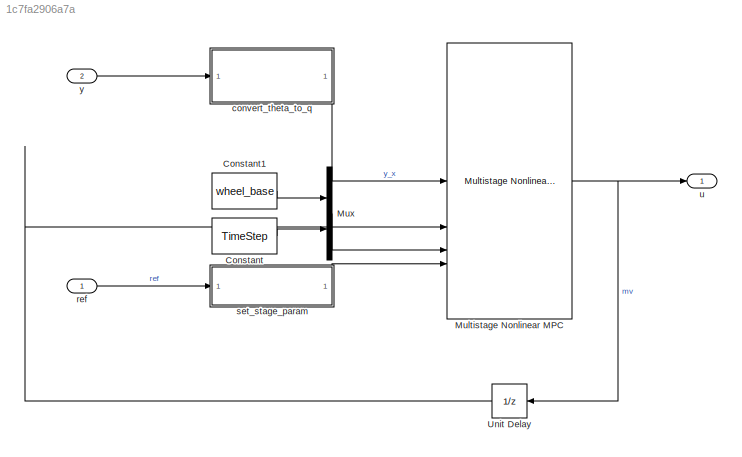
MODEL slx_1c7fa2906a7a
KIND model
BLOCK [Constant] Constant
  Value = TimeStep
BLOCK [Constant] Constant1
  Value = wheel_base
BLOCK [Reference] Multistage Nonlinear MPC  REF=mpclib/Multistage Nonlinear MPC  (lib defined in mdl_ae329e0e0455)
  SCDEnableBlockLinearizationSpecification = on
  SourceBlock = mpclib/Multistage Nonlinear MPC
  SourceType = NonlinearMPCMultistage
BLOCK [Mux] Mux
  DisplayOption = bar
  Inputs = 2
BLOCK [UnitDelay] Unit Delay
  HasFrameUpgradeWarning = on
  InitialCondition = u0
  SampleTime = -1
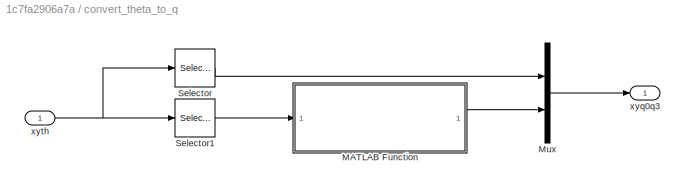
BLOCK [SubSystem] convert_theta_to_q
  AncestorBlock = nl_vehicle_MPC_lib/convert_theta_to_q
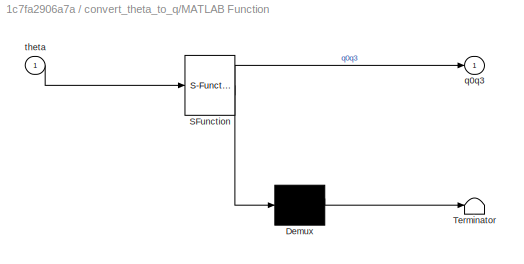
BLOCK [SubSystem] convert_theta_to_q/MATLAB Function
  ErrorFcn = Stateflow.Translate.translate
  PermitHierarchicalResolution = ExplicitOnly
  SFBlockType = MATLAB Function
  TreatAsAtomicUnit = on
BLOCK [Demux] convert_theta_to_q/MATLAB Function/ Demux 
  Outputs = 1
BLOCK [S-Function] convert_theta_to_q/MATLAB Function/ SFunction 
  EnableBusSupport = off
  FunctionName = sf_sfun
  PortCounts = [1 2]
  SFcnIsStateOwnerBlock = off
  SFunctionDeploymentMode = off
  Tag = Stateflow S-Function 1
BLOCK [Terminator] convert_theta_to_q/MATLAB Function/ Terminator 
BLOCK [Outport] convert_theta_to_q/MATLAB Function/q0q3
BLOCK [Inport] convert_theta_to_q/MATLAB Function/theta
BLOCK [Mux] convert_theta_to_q/Mux
  DisplayOption = bar
  Inputs = 2
BLOCK [Selector] convert_theta_to_q/Selector
  IndexOptions = Index vector (dialog)
  Indices = [1 2]
  InputPortWidth = 3
  OutputSizes = 1
BLOCK [Selector] convert_theta_to_q/Selector1
  IndexOptions = Index vector (dialog)
  Indices = [3]
  InputPortWidth = 3
  OutputSizes = 1
BLOCK [Outport] convert_theta_to_q/xyq0q3
BLOCK [Inport] convert_theta_to_q/xyth
BLOCK [Inport] ref
  OutDataTypeStr = double
  PortDimensions = [refNum, 4]
  SamplingMode = Sample based
  SignalType = real
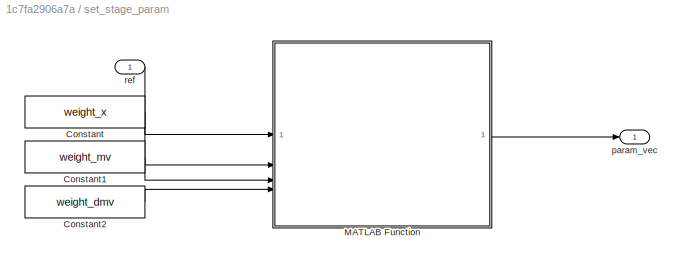
BLOCK [SubSystem] set_stage_param
BLOCK [Constant] set_stage_param/Constant
  Value = weight_x
  VectorParams1D = off
BLOCK [Constant] set_stage_param/Constant1
  Value = weight_mv
  VectorParams1D = off
BLOCK [Constant] set_stage_param/Constant2
  Value = weight_dmv
  VectorParams1D = off
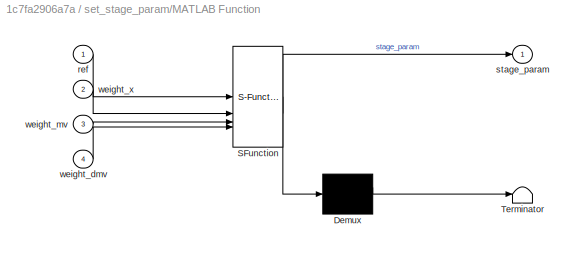
BLOCK [SubSystem] set_stage_param/MATLAB Function
  ErrorFcn = Stateflow.Translate.translate
  PermitHierarchicalResolution = ExplicitOnly
  SFBlockType = MATLAB Function
  TreatAsAtomicUnit = on
BLOCK [Demux] set_stage_param/MATLAB Function/ Demux 
  Outputs = 1
BLOCK [S-Function] set_stage_param/MATLAB Function/ SFunction 
  EnableBusSupport = off
  FunctionName = sf_sfun
  PortCounts = [4 2]
  SFcnIsStateOwnerBlock = off
  SFunctionDeploymentMode = off
  Tag = Stateflow S-Function 2
BLOCK [Terminator] set_stage_param/MATLAB Function/ Terminator 
BLOCK [Inport] set_stage_param/MATLAB Function/ref
BLOCK [Outport] set_stage_param/MATLAB Function/stage_param
BLOCK [Inport] set_stage_param/MATLAB Function/weight_dmv
  Port = 4
BLOCK [Inport] set_stage_param/MATLAB Function/weight_mv
  Port = 3
BLOCK [Inport] set_stage_param/MATLAB Function/weight_x
  Port = 2
BLOCK [Outport] set_stage_param/param_vec
BLOCK [Inport] set_stage_param/ref
BLOCK [Outport] u
  OutDataTypeStr = double
  PortDimensions = 2
  SamplingMode = Sample based
  SignalType = real
BLOCK [Inport] y
  OutDataTypeStr = double
  Port = 2
  PortDimensions = 3
  SamplingMode = Sample based
  SignalType = real
LINE Constant1:1 -> Mux:1
LINE Constant:1 -> Mux:2
NET Multistage Nonlinear MPC:1 -> Unit Delay:1, u:1
LINE Mux:1 -> Multistage Nonlinear MPC:3
LINE Unit Delay:1 -> Multistage Nonlinear MPC:2
LINE convert_theta_to_q:1 -> Multistage Nonlinear MPC:1
LINE ref:1 -> set_stage_param:1
LINE set_stage_param/Constant1:1 -> set_stage_param/MATLAB Function:3
LINE set_stage_param/Constant2:1 -> set_stage_param/MATLAB Function:4
LINE set_stage_param/Constant:1 -> set_stage_param/MATLAB Function:2
LINE set_stage_param/MATLAB Function:1 -> set_stage_param/param_vec:1
LINE set_stage_param/ref:1 -> set_stage_param/MATLAB Function:1
LINE set_stage_param:1 -> Multistage Nonlinear MPC:4
LINE y:1 -> convert_theta_to_q:1
note: NET lines group one-source signal fan-out (src -> all destinations, sorted); 1:1 wires keep LINE
CHART convert_theta_to_q/MATLAB Function states=1 transitions=1
  STATE_LABEL 'eML_blk_kernel()'
  STATE_LABEL "SCRIPT:\nfunction q0q3 = theta_to_q0q3_no_outlier(theta)\n\npersistent initial_flag;\nif isempty(initial_flag)\n    initial_flag = false;\nend\npersistent q0q3_pre;\nif isempty(q0q3_pre)\n    q0q3_pre = zeros(2, 1, 'like', theta);\nend\n\nTHETA = 0.5 * theta;\nq0q3 = [cos(THETA); sin(THETA)];\n\nif (~initial_flag)\n    q0q3_pre = q0q3;\n    initial_flag = true;\nelse\n    diff = sum(abs(q0q3 - q0q3_pre));\n        \n ...<+182ch>"
CHART set_stage_param/MATLAB Function states=1 transitions=1
  STATE_LABEL 'eML_blk_kernel()'
  STATE_LABEL "SCRIPT:\nfunction stage_param = set_stage_param(ref, weight_x, weight_mv, weight_dmv)\n\n% 参照軌道の行列に重みを接続する。\nweight_vec = [weight_x, weight_mv, weight_dmv];\nMAT = [ref, repmat(weight_vec, size(ref, 1), 1)];\n\n% 行列をベクトルに変換する。\nstage_param = reshape(MAT', [], 1);\n\nend"
CHART  states=0 transitions=0
CHART  states=0 transitions=0
